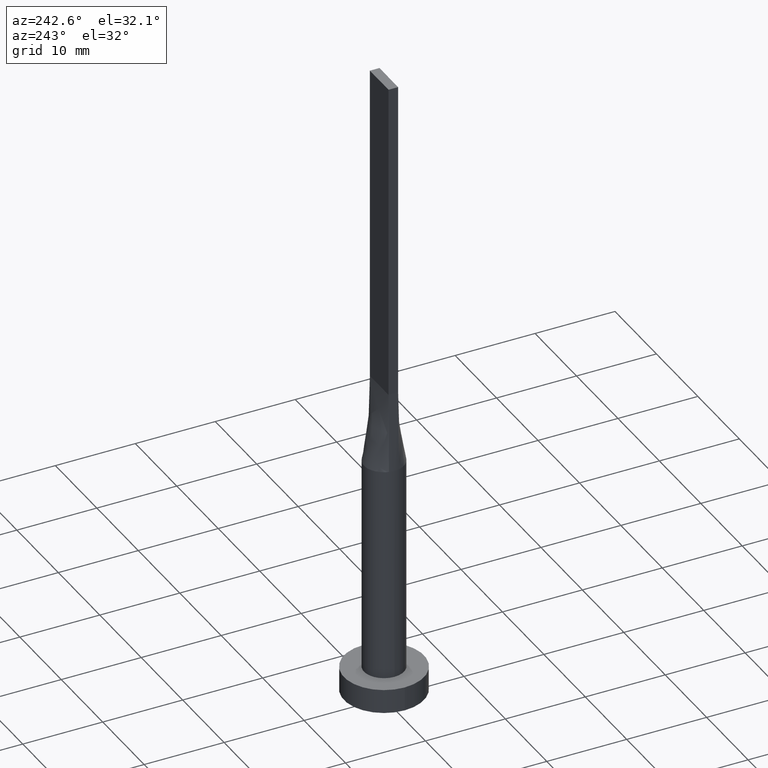
[diagram: clean part render]
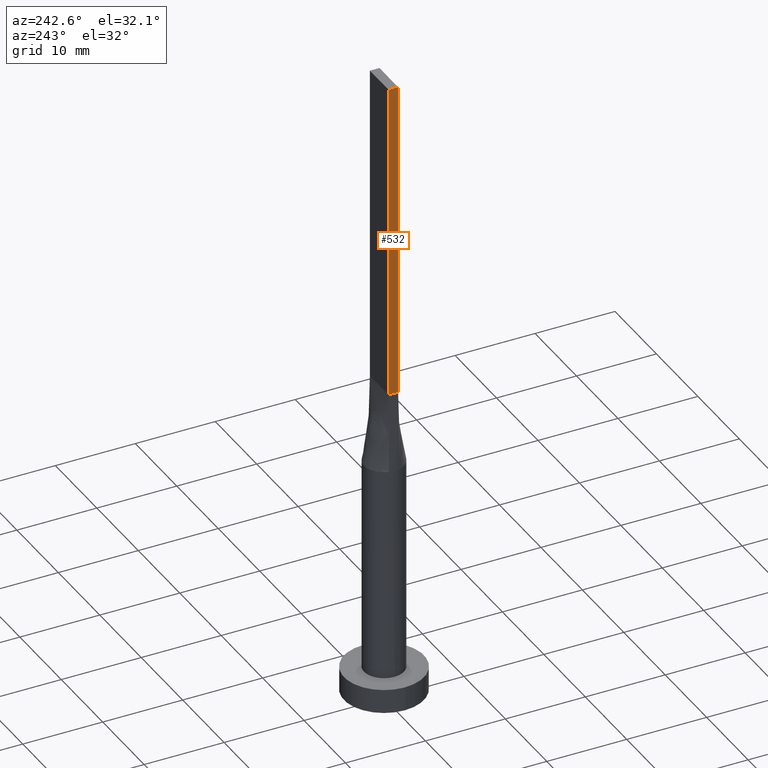
[diagram: same view with one face highlighted and labeled with its STEP entity id]
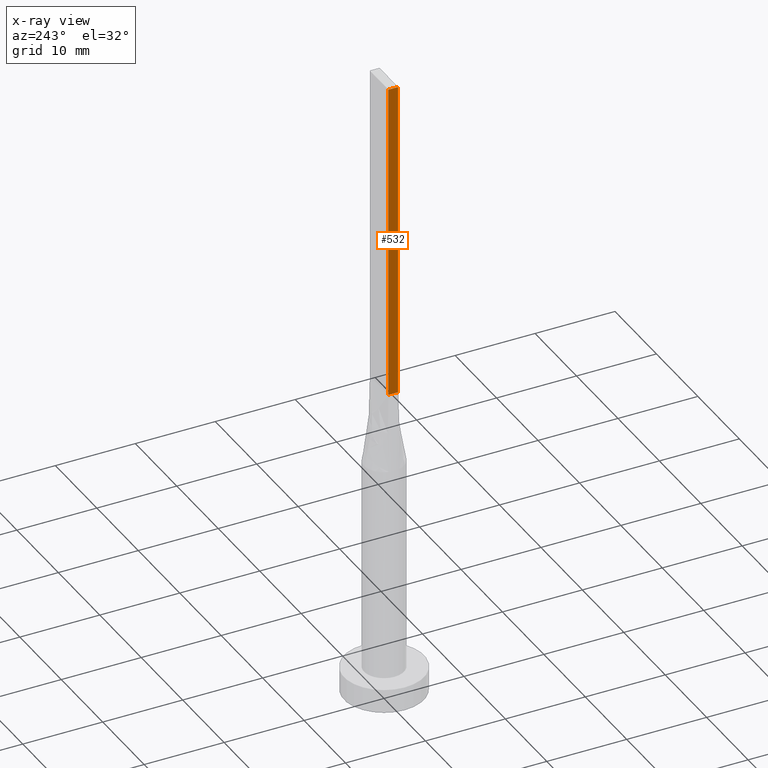
[diagram: x-ray of the same camera — body ghosted, the highlighted face saturated]
A machine part, auxiliary view. The second image highlights one B-rep face of the part: STEP entity #532.
The next image is the same camera in x-ray: the body ghosted, the highlighted face saturated — about 0% of this face is hidden behind the body in this view.
In plain terms, the highlighted planar face has unit normal (1, -0, 0).
Its self-contained STEP definition (entity closure, byte-faithful):
#5 = CARTESIAN_POINT ( 'NONE',  ( -2.249999999999999556, 0.6000000000000001998, 80.00000000000000000 ) ) ;
#20 = VECTOR ( 'NONE', #149, 1000.000000000000000 ) ;
#21 = LINE ( 'NONE', #458, #503 ) ;
#34 = EDGE_LOOP ( 'NONE', ( #130, #211, #286, #435 ) ) ;
#59 = VERTEX_POINT ( 'NONE', #355 ) ;
#109 = CARTESIAN_POINT ( 'NONE',  ( -2.249999999999999556, 0.6000000000000001998, 40.00000000000000000 ) ) ;
#115 = CARTESIAN_POINT ( 'NONE',  ( -2.250000000000000000, -0.5999999999999994227, 80.00000000000000000 ) ) ;
#126 = EDGE_CURVE ( 'NONE', #511, #254, #267, .T. ) ;
#130 = ORIENTED_EDGE ( 'NONE', *, *, #156, .T. ) ;
#143 = EDGE_CURVE ( 'NONE', #511, #160, #227, .T. ) ;
#149 = DIRECTION ( 'NONE',  ( -0.000000000000000000, -0.000000000000000000, -1.000000000000000000 ) ) ;
#156 = EDGE_CURVE ( 'NONE', #254, #59, #21, .T. ) ;
#160 = VERTEX_POINT ( 'NONE', #115 ) ;
#178 = VECTOR ( 'NONE', #377, 1000.000000000000000 ) ;
#180 = EDGE_CURVE ( 'NONE', #160, #59, #426, .T. ) ;
#202 = CARTESIAN_POINT ( 'NONE',  ( -2.250000000000000000, -0.5999999999999994227, 80.00000000000000000 ) ) ;
#211 = ORIENTED_EDGE ( 'NONE', *, *, #180, .F. ) ;
#227 = LINE ( 'NONE', #5, #178 ) ;
#229 = CARTESIAN_POINT ( 'NONE',  ( -2.249999999999999556, 0.6000000000000001998, 80.00000000000000000 ) ) ;
#232 = DIRECTION ( 'NONE',  ( 1.000000000000000000, -3.614007241618349264E-16, 0.000000000000000000 ) ) ;
#254 = VERTEX_POINT ( 'NONE', #109 ) ;
#267 = LINE ( 'NONE', #487, #474 ) ;
#270 = DIRECTION ( 'NONE',  ( 3.614007241618349264E-16, 1.000000000000000000, 0.000000000000000000 ) ) ;
#286 = ORIENTED_EDGE ( 'NONE', *, *, #143, .F. ) ;
#318 = PLANE ( 'NONE',  #564 ) ;
#355 = CARTESIAN_POINT ( 'NONE',  ( -2.250000000000000000, -0.5999999999999994227, 40.00000000000000000 ) ) ;
#377 = DIRECTION ( 'NONE',  ( -3.614007241618349264E-16, -1.000000000000000000, 0.000000000000000000 ) ) ;
#394 = FACE_OUTER_BOUND ( 'NONE', #34, .T. ) ;
#426 = LINE ( 'NONE', #202, #20 ) ;
#435 = ORIENTED_EDGE ( 'NONE', *, *, #126, .T. ) ;
#448 = DIRECTION ( 'NONE',  ( -0.000000000000000000, -0.000000000000000000, -1.000000000000000000 ) ) ;
#458 = CARTESIAN_POINT ( 'NONE',  ( -2.249999999999999556, 0.6000000000000001998, 40.00000000000000000 ) ) ;
#474 = VECTOR ( 'NONE', #448, 1000.000000000000000 ) ;
#487 = CARTESIAN_POINT ( 'NONE',  ( -2.249999999999999556, 0.6000000000000001998, 80.00000000000000000 ) ) ;
#503 = VECTOR ( 'NONE', #560, 1000.000000000000000 ) ;
#511 = VERTEX_POINT ( 'NONE', #229 ) ;
#532 = ADVANCED_FACE ( 'NONE', ( #394 ), #318, .F. ) ;
#543 = CARTESIAN_POINT ( 'NONE',  ( -2.249999999999999556, 0.6000000000000001998, 80.00000000000000000 ) ) ;
#560 = DIRECTION ( 'NONE',  ( -3.614007241618349264E-16, -1.000000000000000000, 0.000000000000000000 ) ) ;
#564 = AXIS2_PLACEMENT_3D ( 'NONE', #543, #232, #270 ) ;